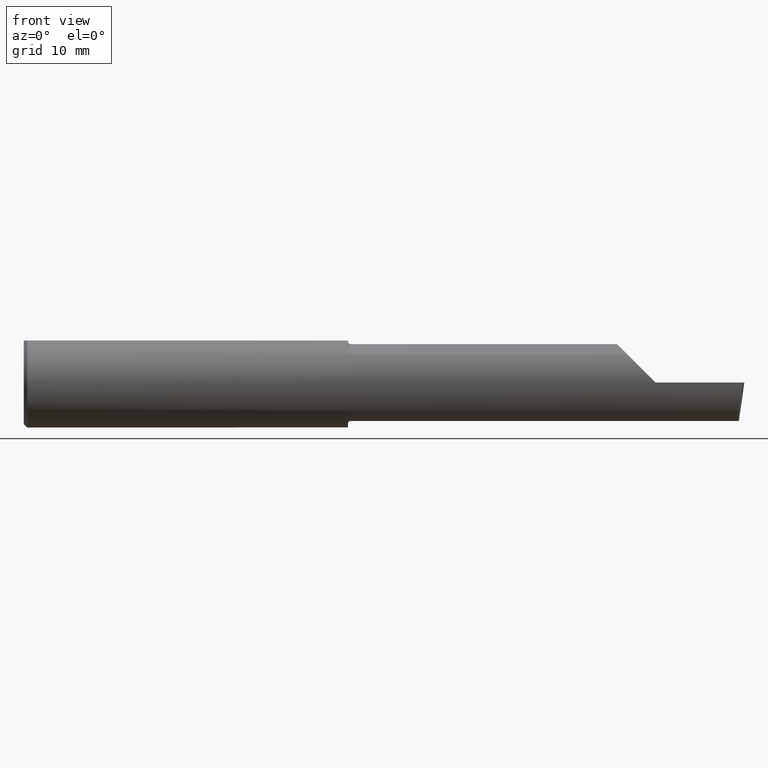
[diagram: clean part render]
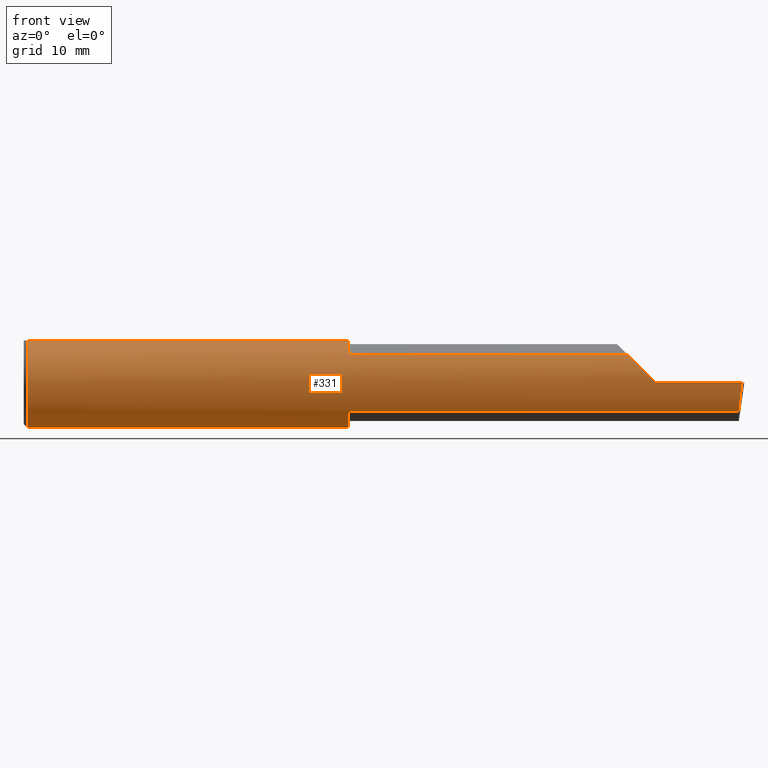
[diagram: same view with one face highlighted and labeled with its STEP entity id]
A machine part, front view. The second image highlights one B-rep face of the part: STEP entity #331.
In plain terms, the highlighted cylindrical surface (partial cylindrical patch) has radius 4.7587 mm, axis along (-1, -0, -0).
Its self-contained STEP definition (entity closure, byte-faithful):
#2 = EDGE_CURVE ( 'NONE', #203, #40, #349, .T. ) ;
#9 = CARTESIAN_POINT ( 'NONE',  ( 0.000000000000000000, 0.06597272163553677404, 0.1753499999999999226 ) ) ;
#10 = CARTESIAN_POINT ( 'NONE',  ( 0.01499999999999997863, -0.06597272163553657975, 0.1753499999999999781 ) ) ;
#19 = CARTESIAN_POINT ( 'NONE',  ( 1.350000000000000311, 0.000000000000000000, 0.000000000000000000 ) ) ;
#20 = VECTOR ( 'NONE', #592, 39.37007874015748143 ) ;
#25 = VERTEX_POINT ( 'NONE', #329 ) ;
#27 = CARTESIAN_POINT ( 'NONE',  ( 1.350000000000000533, -0.1100056335683315678, 0.1520014681335478957 ) ) ;
#31 = CARTESIAN_POINT ( 'NONE',  ( 1.352858161161657025, -0.1330631366558194806, -0.1319833113027350791 ) ) ;
#32 = VERTEX_POINT ( 'NONE', #614 ) ;
#39 = DIRECTION ( 'NONE',  ( 0.000000000000000000, 0.000000000000000000, 1.000000000000000000 ) ) ;
#40 = VERTEX_POINT ( 'NONE', #225 ) ;
#41 = ORIENTED_EDGE ( 'NONE', *, *, #595, .T. ) ;
#42 = CARTESIAN_POINT ( 'NONE',  ( 1.354992410154055804, -0.1399157128067677891, -0.1246181391956572848 ) ) ;
#44 = CARTESIAN_POINT ( 'NONE',  ( 1.360000000000000320, -0.1454917112299459747, 0.1180346748349057201 ) ) ;
#45 = VERTEX_POINT ( 'NONE', #44 ) ;
#46 = DIRECTION ( 'NONE',  ( -1.000000000000000000, -0.000000000000000000, -0.000000000000000000 ) ) ;
#52 = CARTESIAN_POINT ( 'NONE',  ( 2.009999999999999787, -0.1454917112299465021, 0.1180346748349054287 ) ) ;
#55 = LINE ( 'NONE', #624, #525 ) ;
#69 = CARTESIAN_POINT ( 'NONE',  ( 1.350000000000000311, -0.06597272163553659363, 0.1753499999999999781 ) ) ;
#75 = CARTESIAN_POINT ( 'NONE',  ( 0.000000000000000000, 0.000000000000000000, 0.000000000000000000 ) ) ;
#77 = EDGE_CURVE ( 'NONE', #305, #344, #424, .T. ) ;
#79 = CARTESIAN_POINT ( 'NONE',  ( 2.990625440078235275, -0.1873499999999999888, -6.696573958807117964E-17 ) ) ;
#80 = ORIENTED_EDGE ( 'NONE', *, *, #77, .F. ) ;
#86 = CARTESIAN_POINT ( 'NONE',  ( 1.357567572594822414, -0.1442269357022583354, -0.1195781817710035860 ) ) ;
#88 = DIRECTION ( 'NONE',  ( 1.000000000000000000, -5.691349986800549142E-18, 0.000000000000000000 ) ) ;
#96 = CARTESIAN_POINT ( 'NONE',  ( 1.350000000000000311, -0.1013606951871662831, -0.1575627873933891920 ) ) ;
#97 = CARTESIAN_POINT ( 'NONE',  ( 2.629999999999999893, -0.1873499999999999888, -1.592040838891560883E-17 ) ) ;
#99 = VERTEX_POINT ( 'NONE', #10 ) ;
#101 = CARTESIAN_POINT ( 'NONE',  ( 1.350000000000000311, -0.1013606951871662831, -0.1575627873933891920 ) ) ;
#108 = CARTESIAN_POINT ( 'NONE',  ( 2.629999999999999893, -0.1873499999999999888, -1.592040838891560883E-17 ) ) ;
#115 = AXIS2_PLACEMENT_3D ( 'NONE', #19, #400, #599 ) ;
#119 = CYLINDRICAL_SURFACE ( 'NONE', #179, 0.1873499999999999888 ) ;
#121 = VERTEX_POINT ( 'NONE', #101 ) ;
#130 = CARTESIAN_POINT ( 'NONE',  ( 1.356216587669451412, -0.1423502170013163648, 0.1218111458006551073 ) ) ;
#141 = ORIENTED_EDGE ( 'NONE', *, *, #404, .F. ) ;
#144 = CIRCLE ( 'NONE', #544, 0.1873499999999999888 ) ;
#152 = EDGE_CURVE ( 'NONE', #305, #99, #55, .T. ) ;
#156 = EDGE_CURVE ( 'NONE', #45, #40, #291, .T. ) ;
#158 = DIRECTION ( 'NONE',  ( -1.000000000000000000, -0.000000000000000000, -0.000000000000000000 ) ) ;
#165 = CARTESIAN_POINT ( 'NONE',  ( 1.352845212421890819, -0.1330145888620359040, 0.1320338710448779596 ) ) ;
#167 = CARTESIAN_POINT ( 'NONE',  ( 1.359343186359709632, -0.1454917112302220594, 0.1180346748345674213 ) ) ;
#174 = CARTESIAN_POINT ( 'NONE',  ( 1.360000000000000320, -0.1454917112299459747, 0.1180346748349057201 ) ) ;
#179 = AXIS2_PLACEMENT_3D ( 'NONE', #75, #307, #500 ) ;
#185 = CARTESIAN_POINT ( 'NONE',  ( 0.01499999999999999424, 0.000000000000000000, 0.000000000000000000 ) ) ;
#193 = DIRECTION ( 'NONE',  ( -1.000000000000000000, -0.000000000000000000, -0.000000000000000000 ) ) ;
#194 = EDGE_CURVE ( 'NONE', #387, #25, #607, .T. ) ;
#198 = VECTOR ( 'NONE', #46, 39.37007874015748143 ) ;
#201 = DIRECTION ( 'NONE',  ( 1.000000000000000000, 0.000000000000000000, 0.000000000000000000 ) ) ;
#203 = VERTEX_POINT ( 'NONE', #108 ) ;
#204 =( BOUNDED_CURVE ( )  B_SPLINE_CURVE ( 3, ( #597, #213, #350, #261 ),
 .UNSPECIFIED., .F., .T. ) 
 B_SPLINE_CURVE_WITH_KNOTS ( ( 4, 4 ),
 ( 0.6791649766275701383, 1.360746882514768163 ),
 .UNSPECIFIED. ) 
 CURVE ( )  GEOMETRIC_REPRESENTATION_ITEM ( )  RATIONAL_B_SPLINE_CURVE ( ( 1.000000000000000000, 0.9616603987079548332, 0.9616603987079548332, 1.000000000000000000 ) ) 
 REPRESENTATION_ITEM ( '' )  );
#205 = LINE ( 'NONE', #394, #20 ) ;
#213 = CARTESIAN_POINT ( 'NONE',  ( 2.980648201915111262, -0.1728409665178086418, -0.08432347972837196670 ) ) ;
#215 = CARTESIAN_POINT ( 'NONE',  ( 1.358780002058963987, -0.1452129146512408098, 0.1183784924451703191 ) ) ;
#218 = CARTESIAN_POINT ( 'NONE',  ( 1.356674049009441552, -0.1431412424162801234, 0.1208797671938530438 ) ) ;
#220 = ORIENTED_EDGE ( 'NONE', *, *, #557, .T. ) ;
#223 = VECTOR ( 'NONE', #389, 39.37007874015748143 ) ;
#225 = CARTESIAN_POINT ( 'NONE',  ( 2.511965325165094853, -0.1454917112299475568, 0.1180346748349042352 ) ) ;
#244 = LINE ( 'NONE', #289, #198 ) ;
#257 = CARTESIAN_POINT ( 'NONE',  ( 1.354402240695039117, -0.1382337250035442500, 0.1264828452200237596 ) ) ;
#261 = CARTESIAN_POINT ( 'NONE',  ( 2.990625440078235275, -0.1873499999999999888, -6.696573958807117964E-17 ) ) ;
#264 = FACE_OUTER_BOUND ( 'NONE', #448, .T. ) ;
#270 = CARTESIAN_POINT ( 'NONE',  ( 1.360000000000000320, -0.1454917112299460580, -0.1180346748349056646 ) ) ;
#271 = ORIENTED_EDGE ( 'NONE', *, *, #371, .F. ) ;
#279 = EDGE_CURVE ( 'NONE', #344, #45, #373, .T. ) ;
#282 = VECTOR ( 'NONE', #201, 39.37007874015748143 ) ;
#289 = CARTESIAN_POINT ( 'NONE',  ( 5.044671737413194975E-32, -0.1873499999999999610, 3.563723795045361633E-16 ) ) ;
#291 = LINE ( 'NONE', #52, #223 ) ;
#301 = B_SPLINE_CURVE_WITH_KNOTS ( 'NONE', 3,
 ( #270, #471, #417, #572, #86, #521, #467, #42, #415, #31, #411, #320, #419, #96 ),
 .UNSPECIFIED., .F., .F.,
 ( 4, 2, 2, 2, 2, 2, 4 ),
 ( 1.967643395654746293E-07, 5.001319782656384310E-05, 9.982963131356221390E-05, 0.0001994624982875588606, 0.0003987282322355520186, 0.0007972597001315340519, 0.001594322635923497468 ),
 .UNSPECIFIED. ) ;
#305 = VERTEX_POINT ( 'NONE', #69 ) ;
#307 = DIRECTION ( 'NONE',  ( -1.000000000000000000, -0.000000000000000000, -0.000000000000000000 ) ) ;
#310 = CARTESIAN_POINT ( 'NONE',  ( 0.01499999999999999424, 0.06597272163553677404, 0.1753499999999999226 ) ) ;
#316 = ORIENTED_EDGE ( 'NONE', *, *, #279, .F. ) ;
#320 = CARTESIAN_POINT ( 'NONE',  ( 1.350483388365424364, -0.1180160148311104606, -0.1458664675357414509 ) ) ;
#321 = CARTESIAN_POINT ( 'NONE',  ( 2.545676520271628718, -0.1728409665178091414, 0.08432347972837085648 ) ) ;
#325 = ORIENTED_EDGE ( 'NONE', *, *, #461, .F. ) ;
#329 = CARTESIAN_POINT ( 'NONE',  ( 0.01499999999999999424, 0.000000000000000000, -0.1873499999999999888 ) ) ;
#331 = ADVANCED_FACE ( 'NONE', ( #264 ), #119, .T. ) ;
#335 = VERTEX_POINT ( 'NONE', #79 ) ;
#344 = VERTEX_POINT ( 'NONE', #358 ) ;
#349 =( BOUNDED_CURVE ( )  B_SPLINE_CURVE ( 3, ( #97, #619, #321, #370 ),
 .UNSPECIFIED., .F., .T. ) 
 B_SPLINE_CURVE_WITH_KNOTS ( ( 4, 4 ),
 ( 4.712388980384689674, 5.393970886271879372 ),
 .UNSPECIFIED. ) 
 CURVE ( )  GEOMETRIC_REPRESENTATION_ITEM ( )  RATIONAL_B_SPLINE_CURVE ( ( 1.000000000000000000, 0.9616603987079558324, 0.9616603987079558324, 1.000000000000000000 ) ) 
 REPRESENTATION_ITEM ( '' )  );
#350 = CARTESIAN_POINT ( 'NONE',  ( 2.985293537526807039, -0.1873499999999999610, -0.04340998088356440299 ) ) ;
#351 = ORIENTED_EDGE ( 'NONE', *, *, #392, .F. ) ;
#358 = CARTESIAN_POINT ( 'NONE',  ( 1.350000000000000311, -0.1013606951871662831, 0.1575627873933891920 ) ) ;
#370 = CARTESIAN_POINT ( 'NONE',  ( 2.511965325165094853, -0.1454917112299475568, 0.1180346748349042352 ) ) ;
#371 = EDGE_CURVE ( 'NONE', #32, #606, #205, .T. ) ;
#373 = B_SPLINE_CURVE_WITH_KNOTS ( 'NONE', 3,
 ( #503, #27, #555, #451, #165, #257, #457, #130, #218, #506, #548, #215, #167, #174 ),
 .UNSPECIFIED., .F., .F.,
 ( 4, 2, 2, 2, 2, 2, 4 ),
 ( 0.0006605532644857158020, 0.001446564801351194179, 0.001839570569783934018, 0.002036073454000306322, 0.002134324896108489873, 0.002183450617162586635, 0.002232576338216682964 ),
 .UNSPECIFIED. ) ;
#378 = CARTESIAN_POINT ( 'NONE',  ( 1.360000000000000320, -0.1454917112299460580, -0.1180346748349056646 ) ) ;
#379 = CIRCLE ( 'NONE', #115, 0.1873499999999999888 ) ;
#381 = EDGE_CURVE ( 'NONE', #32, #335, #204, .T. ) ;
#387 = VERTEX_POINT ( 'NONE', #310 ) ;
#389 = DIRECTION ( 'NONE',  ( 1.000000000000000000, -5.691349986800549142E-18, 0.000000000000000000 ) ) ;
#391 = ORIENTED_EDGE ( 'NONE', *, *, #156, .F. ) ;
#392 = EDGE_CURVE ( 'NONE', #121, #543, #379, .T. ) ;
#393 = AXIS2_PLACEMENT_3D ( 'NONE', #609, #88, #564 ) ;
#394 = CARTESIAN_POINT ( 'NONE',  ( 2.009999999999999787, -0.1454917112299465021, -0.1180346748349054287 ) ) ;
#400 = DIRECTION ( 'NONE',  ( 1.000000000000000000, -5.691349986800549142E-18, 0.000000000000000000 ) ) ;
#404 = EDGE_CURVE ( 'NONE', #606, #121, #301, .T. ) ;
#411 = CARTESIAN_POINT ( 'NONE',  ( 1.352152469637251109, -0.1294082664154920792, -0.1355718222394687866 ) ) ;
#415 = CARTESIAN_POINT ( 'NONE',  ( 1.354404192622242542, -0.1382376748423444768, -0.1264781021717286957 ) ) ;
#417 = CARTESIAN_POINT ( 'NONE',  ( 1.358770022656896170, -0.1452078353828887280, -0.1183847404910805950 ) ) ;
#419 = CARTESIAN_POINT ( 'NONE',  ( 1.350000000000000311, -0.1099295023601654653, -0.1520504436074704979 ) ) ;
#424 = CIRCLE ( 'NONE', #393, 0.1873499999999999888 ) ;
#425 = ORIENTED_EDGE ( 'NONE', *, *, #152, .T. ) ;
#448 = EDGE_LOOP ( 'NONE', ( #271, #455, #220, #466, #391, #316, #80, #425, #325, #472, #41, #351, #141 ) ) ;
#451 = CARTESIAN_POINT ( 'NONE',  ( 1.352149571221041180, -0.1293863363941681333, 0.1355911774285945004 ) ) ;
#455 = ORIENTED_EDGE ( 'NONE', *, *, #381, .T. ) ;
#457 = CARTESIAN_POINT ( 'NONE',  ( 1.354997648858497827, -0.1399294360413330385, 0.1246027428089599431 ) ) ;
#461 = EDGE_CURVE ( 'NONE', #25, #99, #144, .T. ) ;
#466 = ORIENTED_EDGE ( 'NONE', *, *, #2, .T. ) ;
#467 = CARTESIAN_POINT ( 'NONE',  ( 1.356208682939483712, -0.1423361566194920047, -0.1218275716760987282 ) ) ;
#471 = CARTESIAN_POINT ( 'NONE',  ( 1.359335809113331406, -0.1454917112299462245, -0.1180346748349057201 ) ) ;
#472 = ORIENTED_EDGE ( 'NONE', *, *, #194, .F. ) ;
#482 = CARTESIAN_POINT ( 'NONE',  ( 1.350000000000000311, 0.06597272163553680180, 0.1753499999999999781 ) ) ;
#500 = DIRECTION ( 'NONE',  ( 0.000000000000000000, 0.000000000000000000, 1.000000000000000000 ) ) ;
#503 = CARTESIAN_POINT ( 'NONE',  ( 1.350000000000000311, -0.1013606951871662831, 0.1575627873933891920 ) ) ;
#506 = CARTESIAN_POINT ( 'NONE',  ( 1.357580800664965670, -0.1442412736056265521, 0.1195608849622527420 ) ) ;
#516 = DIRECTION ( 'NONE',  ( -1.000000000000000000, -0.000000000000000000, -0.000000000000000000 ) ) ;
#521 = CARTESIAN_POINT ( 'NONE',  ( 1.356664569472228132, -0.1431262185210684379, -0.1208975608635240034 ) ) ;
#524 = LINE ( 'NONE', #9, #282 ) ;
#525 = VECTOR ( 'NONE', #193, 39.37007874015748143 ) ;
#543 = VERTEX_POINT ( 'NONE', #482 ) ;
#544 = AXIS2_PLACEMENT_3D ( 'NONE', #185, #516, #39 ) ;
#548 = CARTESIAN_POINT ( 'NONE',  ( 1.357921033727478521, -0.1445976381173492142, 0.1191292621734219709 ) ) ;
#555 = CARTESIAN_POINT ( 'NONE',  ( 1.350493306168248697, -0.1180879943980263358, 0.1458023451353283872 ) ) ;
#557 = EDGE_CURVE ( 'NONE', #335, #203, #244, .T. ) ;
#564 = DIRECTION ( 'NONE',  ( 0.000000000000000000, 1.000000000000000000, 0.000000000000000000 ) ) ;
#572 = CARTESIAN_POINT ( 'NONE',  ( 1.357909242887170853, -0.1445870704379413896, -0.1191421054870963059 ) ) ;
#579 = DIRECTION ( 'NONE',  ( 0.000000000000000000, 0.000000000000000000, 1.000000000000000000 ) ) ;
#589 = CARTESIAN_POINT ( 'NONE',  ( 0.01499999999999999424, 0.000000000000000000, 0.000000000000000000 ) ) ;
#592 = DIRECTION ( 'NONE',  ( -1.000000000000000000, 5.691349986800549142E-18, -0.000000000000000000 ) ) ;
#595 = EDGE_CURVE ( 'NONE', #387, #543, #524, .T. ) ;
#597 = CARTESIAN_POINT ( 'NONE',  ( 2.977223734188810589, -0.1454917112299465021, -0.1180346748349054287 ) ) ;
#599 = DIRECTION ( 'NONE',  ( 0.000000000000000000, 1.000000000000000000, 0.000000000000000000 ) ) ;
#606 = VERTEX_POINT ( 'NONE', #378 ) ;
#607 = CIRCLE ( 'NONE', #627, 0.1873499999999999888 ) ;
#609 = CARTESIAN_POINT ( 'NONE',  ( 1.350000000000000311, 0.000000000000000000, 0.000000000000000000 ) ) ;
#614 = CARTESIAN_POINT ( 'NONE',  ( 2.977223734188810589, -0.1454917112299465021, -0.1180346748349054287 ) ) ;
#619 = CARTESIAN_POINT ( 'NONE',  ( 2.586590019116435712, -0.1873500000000000165, 0.04340998088356372991 ) ) ;
#624 = CARTESIAN_POINT ( 'NONE',  ( 0.000000000000000000, -0.06597272163553671853, 0.1753499999999999226 ) ) ;
#627 = AXIS2_PLACEMENT_3D ( 'NONE', #589, #158, #579 ) ;